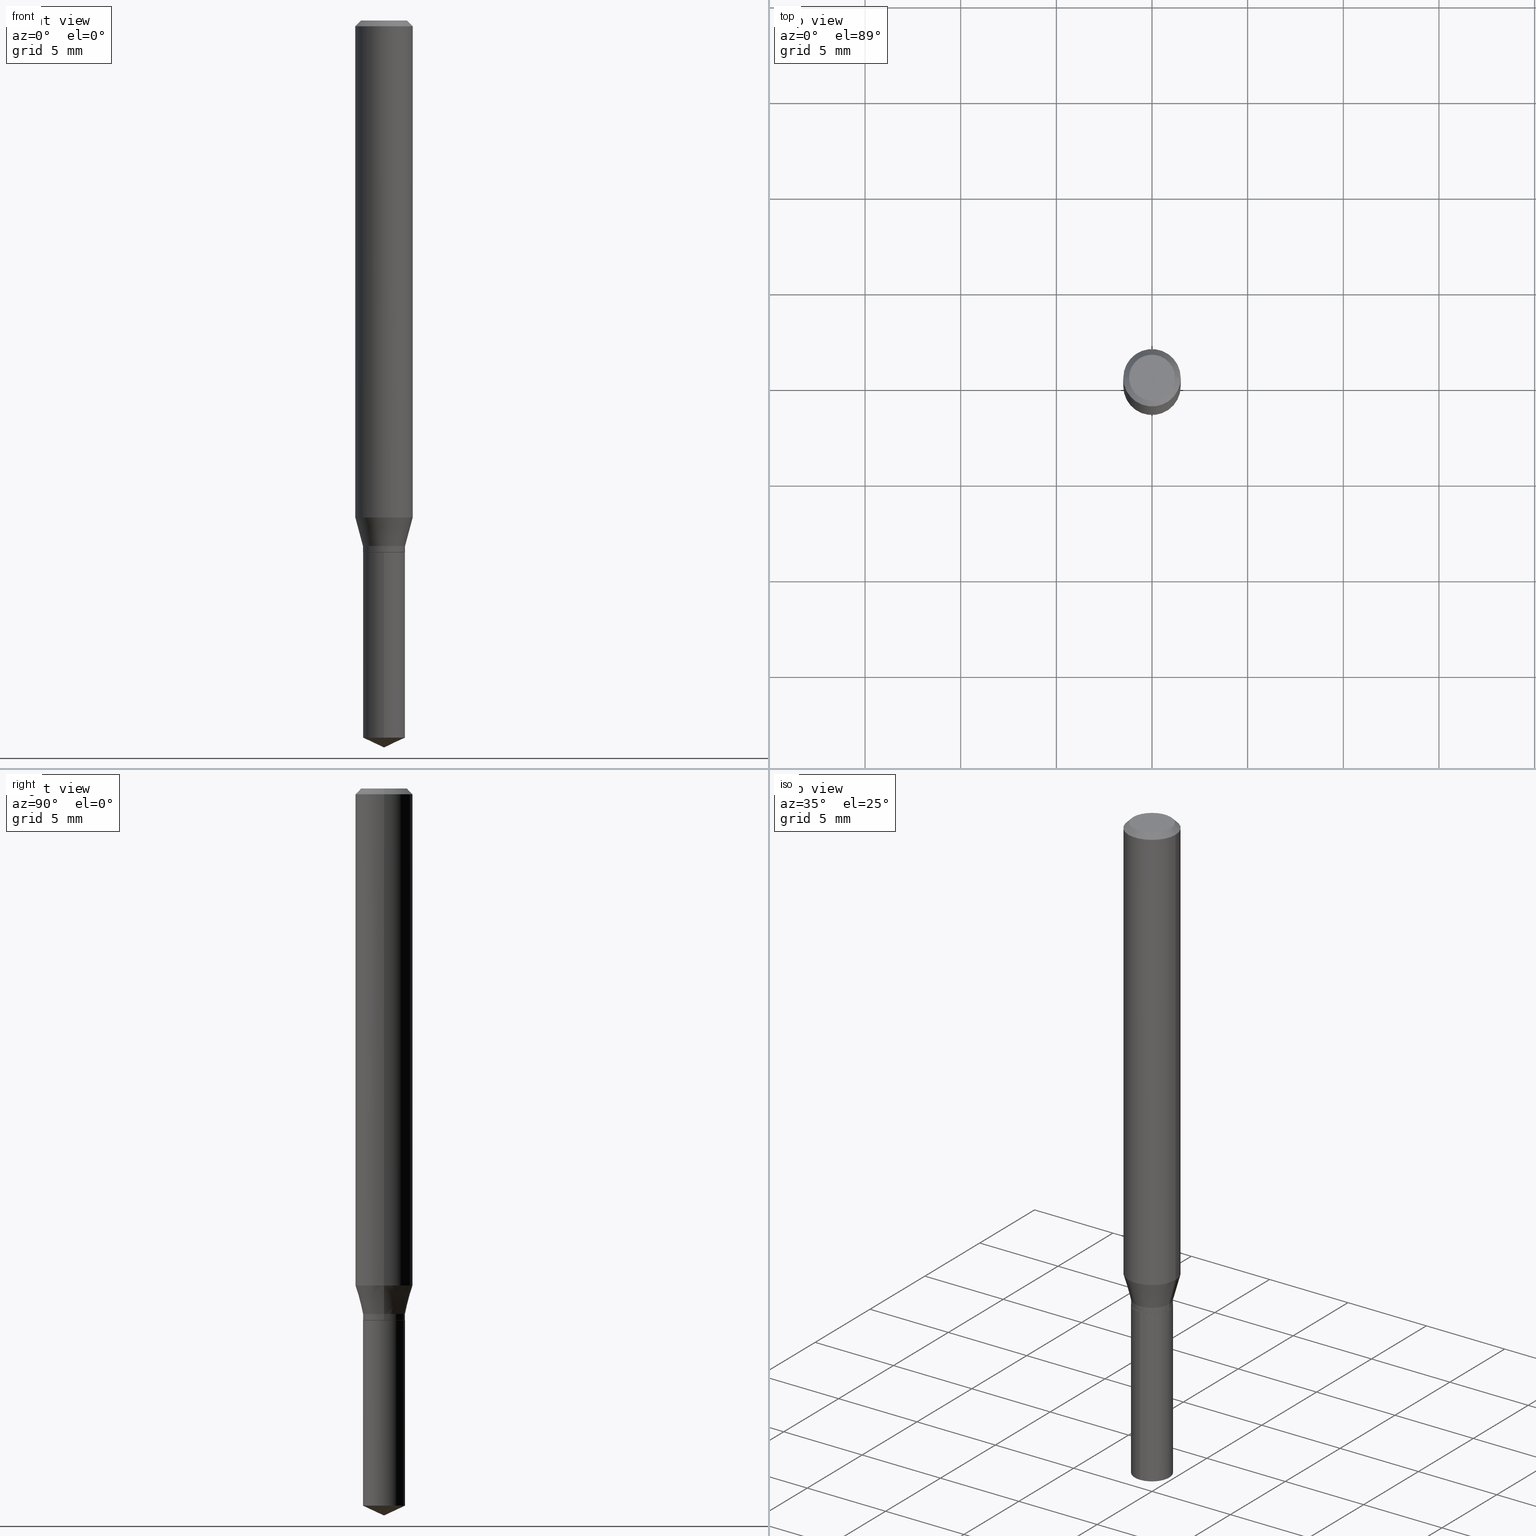
[diagram: canonical four-view strip — front | top / right | iso, engineering-drawing reading convention]
A machine part, canonical four-view strip (front | top / right | iso — engineering-drawing reading convention). The complete STEP part file that produces these views, byte-faithful:
ISO-10303-21;
HEADER;
FILE_DESCRIPTION (( 'STEP AP203' ),
    '1' );
FILE_NAME ('08377.STEP',
    '2024-04-24T14:43:29',
    ( '' ),
    ( '' ),
    'SwSTEP 2.0',
    'SolidWorks 2023',
    '' );
FILE_SCHEMA (( 'CONFIG_CONTROL_DESIGN' ));
ENDSEC;

DATA;
#1 = LINE ( 'NONE', #445, #167 ) ;
#2 = VERTEX_POINT ( 'NONE', #82 ) ;
#3 = CONICAL_SURFACE ( 'NONE', #279, 0.04329999999999997046, 0.2617993877991501850 ) ;
#4 = FACE_OUTER_BOUND ( 'NONE', #312, .T. ) ;
#5 = CARTESIAN_POINT ( 'NONE',  ( 0.04279999999999998389, -4.120297127968795228E-15, -1.094500000000000028 ) ) ;
#6 = VERTEX_POINT ( 'NONE', #260 ) ;
#7 = EDGE_CURVE ( 'NONE', #59, #2, #76, .T. ) ;
#8 = VECTOR ( 'NONE', #9, 39.37007874015748854 ) ;
#9 = DIRECTION ( 'NONE',  ( -6.328713451373358335E-15, -0.9063077870366470501, 0.4226182617407055475 ) ) ;
#10 = UNCERTAINTY_MEASURE_WITH_UNIT (LENGTH_MEASURE( 1.000000000000000082E-05 ), #340, 'distance_accuracy_value', 'NONE');
#11 = EDGE_LOOP ( 'NONE', ( #488, #72, #357, #25 ) ) ;
#12 = SHAPE_DEFINITION_REPRESENTATION ( #147, #402 ) ;
#13 = CC_DESIGN_APPROVAL ( #272, ( #154 ) ) ;
#14 = FACE_OUTER_BOUND ( 'NONE', #192, .T. ) ;
#15 = ORIENTED_EDGE ( 'NONE', *, *, #433, .F. ) ;
#16 = PERSON_AND_ORGANIZATION_ROLE ( 'classification_officer' ) ;
#17 = DIRECTION ( 'NONE',  ( 2.438088387897960049E-29, -3.491481338843145188E-15, -1.000000000000000000 ) ) ;
#18 = VECTOR ( 'NONE', #79, 39.37007874015748143 ) ;
#19 = CARTESIAN_POINT ( 'NONE',  ( -0.05904999999999999832, -1.386445958035808936E-15, -0.01181000000000007044 ) ) ;
#20 = SECURITY_CLASSIFICATION_LEVEL ( 'unclassified' ) ;
#21 = DIRECTION ( 'NONE',  ( -2.445468806185136877E-29, 3.491481338843145188E-15, 1.000000000000000000 ) ) ;
#22 = EDGE_CURVE ( 'NONE', #321, #462, #220, .T. ) ;
#23 = CARTESIAN_POINT ( 'NONE',  ( 2.888098660104663766E-31, -4.123439461173779647E-17, -0.01181000000000007044 ) ) ;
#24 = DIRECTION ( 'NONE',  ( -2.445358326776455510E-29, 3.491639551644474585E-15, 1.000000000000000000 ) ) ;
#25 = ORIENTED_EDGE ( 'NONE', *, *, #22, .F. ) ;
#26 = EDGE_CURVE ( 'NONE', #146, #451, #363, .T. ) ;
#27 = CARTESIAN_POINT ( 'NONE',  ( -3.023622839437885423E-16, -0.04330000000000382154, -1.094499999999999806 ) ) ;
#28 = CONICAL_SURFACE ( 'NONE', #251, 0.05904999999999999832, 0.7853981633974452814 ) ;
#29 = AXIS2_PLACEMENT_3D ( 'NONE', #153, #311, #422 ) ;
#30 = VECTOR ( 'NONE', #284, 39.37007874015748854 ) ;
#31 = PERSON_AND_ORGANIZATION ( #297, #347 ) ;
#32 = PERSON_AND_ORGANIZATION ( #297, #347 ) ;
#33 = DIRECTION ( 'NONE',  ( 1.000000000000000000, -6.982962677686267499E-15, 4.876176775795935232E-29 ) ) ;
#34 = ORIENTED_EDGE ( 'NONE', *, *, #196, .F. ) ;
#35 = EDGE_CURVE ( 'NONE', #324, #289, #1, .T. ) ;
#36 = DIRECTION ( 'NONE',  ( 1.000000000000000000, -6.982962677686266711E-15, 4.876176775795936353E-29 ) ) ;
#37 = DIRECTION ( 'NONE',  ( 0.7071067811865453523, -7.319954787623248157E-15, -0.7071067811865496822 ) ) ;
#38 = APPROVAL_DATE_TIME ( #381, #272 ) ;
#39 = CARTESIAN_POINT ( 'NONE',  ( 0.000000000000000000, 0.000000000000000000, 0.000000000000000000 ) ) ;
#40 = ORIENTED_EDGE ( 'NONE', *, *, #246, .T. ) ;
#41 = CALENDAR_DATE ( 2024, 24, 4 ) ;
#42 = DIRECTION ( 'NONE',  ( -2.445468806185136597E-29, 3.491481338843145583E-15, 1.000000000000000000 ) ) ;
#43 = EDGE_CURVE ( 'NONE', #44, #270, #250, .T. ) ;
#44 = VERTEX_POINT ( 'NONE', #298 ) ;
#45 = APPLICATION_CONTEXT ( 'configuration controlled 3d designs of mechanical parts and assemblies' ) ;
#46 = VERTEX_POINT ( 'NONE', #449 ) ;
#47 = FACE_OUTER_BOUND ( 'NONE', #458, .T. ) ;
#48 = DESIGN_CONTEXT ( 'detailed design', #45, 'design' ) ;
#49 = ORIENTED_EDGE ( 'NONE', *, *, #26, .T. ) ;
#50 = AXIS2_PLACEMENT_3D ( 'NONE', #482, #323, #290 ) ;
#51 = AXIS2_PLACEMENT_3D ( 'NONE', #23, #325, #476 ) ;
#52 = DIRECTION ( 'NONE',  ( -2.445358326776455790E-29, 3.491639551644474585E-15, 1.000000000000000000 ) ) ;
#53 = ORIENTED_EDGE ( 'NONE', *, *, #315, .F. ) ;
#54 = VECTOR ( 'NONE', #175, 39.37007874015748143 ) ;
#55 = DIRECTION ( 'NONE',  ( 0.7071067811864205632, -2.468850131080928224E-15, 0.7071067811866742492 ) ) ;
#56 = EDGE_LOOP ( 'NONE', ( #15, #128, #221, #34 ) ) ;
#57 = PERSON_AND_ORGANIZATION ( #297, #347 ) ;
#58 = FACE_OUTER_BOUND ( 'NONE', #280, .T. ) ;
#59 = VERTEX_POINT ( 'NONE', #407 ) ;
#60 = PERSON_AND_ORGANIZATION ( #297, #347 ) ;
#61 = VECTOR ( 'NONE', #205, 39.37007874015748854 ) ;
#62 = LINE ( 'NONE', #135, #30 ) ;
#63 = PERSON_AND_ORGANIZATION_ROLE ( 'creator' ) ;
#64 = AXIS2_PLACEMENT_3D ( 'NONE', #157, #193, #269 ) ;
#65 = CARTESIAN_POINT ( 'NONE',  ( -0.05905000000000006771, 4.195754854663396409E-16, -2.904631170795525045E-30 ) ) ;
#66 = EDGE_CURVE ( 'NONE', #270, #44, #238, .T. ) ;
#67 = LOCAL_TIME ( 10, 43, 29.00000000000000000, #199 ) ;
#68 = DIRECTION ( 'NONE',  ( -2.445468806185136597E-29, 3.491481338843145583E-15, 1.000000000000000000 ) ) ;
#69 = DIRECTION ( 'NONE',  ( -2.445468806185136877E-29, 3.491481338843145188E-15, 1.000000000000000000 ) ) ;
#70 = AXIS2_PLACEMENT_3D ( 'NONE', #287, #330, #248 ) ;
#71 = EDGE_CURVE ( 'NONE', #270, #2, #293, .T. ) ;
#72 = ORIENTED_EDGE ( 'NONE', *, *, #174, .T. ) ;
#73 = DIRECTION ( 'NONE',  ( -2.445358326776455510E-29, 3.491639551644474585E-15, 1.000000000000000000 ) ) ;
#74 = DIRECTION ( 'NONE',  ( 2.445358326776454949E-29, -3.491639551644474585E-15, -1.000000000000000000 ) ) ;
#75 = VECTOR ( 'NONE', #399, 39.37007874015748143 ) ;
#76 = LINE ( 'NONE', #373, #211 ) ;
#77 = AXIS2_PLACEMENT_3D ( 'NONE', #171, #371, #118 ) ;
#78 = COORDINATED_UNIVERSAL_TIME_OFFSET ( 5, 0, .BEHIND. ) ;
#79 = DIRECTION ( 'NONE',  ( -2.445468806185136877E-29, 3.491481338843145188E-15, 1.000000000000000000 ) ) ;
#80 = ORIENTED_EDGE ( 'NONE', *, *, #206, .T. ) ;
#81 =( NAMED_UNIT ( * ) SI_UNIT ( $, .STERADIAN. ) SOLID_ANGLE_UNIT ( ) );
#82 = CARTESIAN_POINT ( 'NONE',  ( 0.05904999999999999832, -4.535783407291118600E-16, -0.01181000000000007044 ) ) ;
#83 = COORDINATED_UNIVERSAL_TIME_OFFSET ( 5, 0, .BEHIND. ) ;
#84 = CARTESIAN_POINT ( 'NONE',  ( 2.676565608369632355E-29, -3.821426325363822773E-15, -1.094500000000000028 ) ) ;
#85 = ORIENTED_EDGE ( 'NONE', *, *, #246, .F. ) ;
#86 = ADVANCED_FACE ( 'NONE', ( #377 ), #410, .T. ) ;
#87 = ADVANCED_FACE ( 'NONE', ( #225 ), #382, .T. ) ;
#88 = CARTESIAN_POINT ( 'NONE',  ( 0.04279999999999998389, -4.120297127968795228E-15, -1.094500000000000028 ) ) ;
#89 = EDGE_LOOP ( 'NONE', ( #428, #123, #468, #464 ) ) ;
#90 = DIRECTION ( 'NONE',  ( -2.445358326776455510E-29, 3.491639551644474585E-15, 1.000000000000000000 ) ) ;
#91 = ORIENTED_EDGE ( 'NONE', *, *, #35, .F. ) ;
#92 = LINE ( 'NONE', #88, #331 ) ;
#93 = EDGE_CURVE ( 'NONE', #59, #324, #94, .T. ) ;
#94 = CIRCLE ( 'NONE', #150, 0.04724000000000000421 ) ;
#95 = DIRECTION ( 'NONE',  ( -2.445468806185136597E-29, 3.491481338843145583E-15, 1.000000000000000000 ) ) ;
#96 = LOCAL_TIME ( 10, 43, 29.00000000000000000, #83 ) ;
#97 = DIRECTION ( 'NONE',  ( -1.000000000000000000, 6.982962677686265922E-15, -4.876176775795935793E-29 ) ) ;
#98 = DATE_AND_TIME ( #131, #273 ) ;
#99 = EDGE_CURVE ( 'NONE', #289, #2, #106, .T. ) ;
#100 = CARTESIAN_POINT ( 'NONE',  ( -0.04724000000000000421, 3.504923541997677355E-16, -3.380025165670481712E-19 ) ) ;
#101 = CARTESIAN_POINT ( 'NONE',  ( -0.04329999999999997740, -3.490193821742507875E-15, -1.093999999999999861 ) ) ;
#102 = CARTESIAN_POINT ( 'NONE',  ( 0.04329999999999997046, -4.078399351902676776E-15, -1.081499999999999906 ) ) ;
#103 = ORIENTED_EDGE ( 'NONE', *, *, #176, .T. ) ;
#104 = LINE ( 'NONE', #139, #75 ) ;
#105 = VECTOR ( 'NONE', #21, 39.37007874015748143 ) ;
#106 = CIRCLE ( 'NONE', #431, 0.05904999999999999832 ) ;
#107 = CARTESIAN_POINT ( 'NONE',  ( 2.676565608369631794E-29, -3.821426325363822773E-15, -1.094499999999999806 ) ) ;
#108 = CARTESIAN_POINT ( 'NONE',  ( 2.501030346019352130E-29, -3.570808492392561101E-15, -1.022720199780789763 ) ) ;
#109 = CARTESIAN_POINT ( 'NONE',  ( 0.000000000000000000, 0.000000000000000000, 0.000000000000000000 ) ) ;
#110 = ADVANCED_FACE ( 'NONE', ( #429 ), #3, .T. ) ;
#111 = CARTESIAN_POINT ( 'NONE',  ( -9.261532836068574158E-28, 1.322424553111868898E-13, 37.87397874015748300 ) ) ;
#112 = CC_DESIGN_PERSON_AND_ORGANIZATION_ASSIGNMENT ( #60, #183, ( #421 ) ) ;
#113 = DIRECTION ( 'NONE',  ( 1.000000000000000000, -6.982962677686265133E-15, 0.000000000000000000 ) ) ;
#114 = ORIENTED_EDGE ( 'NONE', *, *, #130, .T. ) ;
#115 = CIRCLE ( 'NONE', #390, 0.04279999999999998389 ) ;
#116 = PERSON_AND_ORGANIZATION_ROLE ( 'design_owner' ) ;
#117 = ORIENTED_EDGE ( 'NONE', *, *, #174, .F. ) ;
#118 = DIRECTION ( 'NONE',  ( 1.000000000000000000, -6.982962677686265922E-15, 4.876176775795935793E-29 ) ) ;
#119 = DIRECTION ( 'NONE',  ( 1.000000000000000000, -6.982962677686265133E-15, 0.000000000000000000 ) ) ;
#120 = ORIENTED_EDGE ( 'NONE', *, *, #361, .F. ) ;
#121 = EDGE_CURVE ( 'NONE', #46, #44, #230, .T. ) ;
#122 = CARTESIAN_POINT ( 'NONE',  ( 2.676565608369632355E-29, -3.821426325363822773E-15, -1.094500000000000028 ) ) ;
#123 = ORIENTED_EDGE ( 'NONE', *, *, #196, .T. ) ;
#124 = DIRECTION ( 'NONE',  ( 2.445468806185136597E-29, -3.491481338843145583E-15, -1.000000000000000000 ) ) ;
#125 = ORIENTED_EDGE ( 'NONE', *, *, #130, .F. ) ;
#126 = CARTESIAN_POINT ( 'NONE',  ( -0.04329999999999997046, -3.468372063374738686E-15, -1.081499999999999906 ) ) ;
#127 = CC_DESIGN_APPROVAL ( #474, ( #204 ) ) ;
#128 = ORIENTED_EDGE ( 'NONE', *, *, #149, .T. ) ;
#129 = DIRECTION ( 'NONE',  ( 1.000000000000000000, -6.982962677686266711E-15, 4.876176775795936353E-29 ) ) ;
#130 = EDGE_CURVE ( 'NONE', #413, #462, #268, .T. ) ;
#131 = CALENDAR_DATE ( 2024, 24, 4 ) ;
#132 = LINE ( 'NONE', #356, #177 ) ;
#133 = CYLINDRICAL_SURFACE ( 'NONE', #437, 0.04329999999999997046 ) ;
#134 = COORDINATED_UNIVERSAL_TIME_OFFSET ( 5, 0, .BEHIND. ) ;
#135 = CARTESIAN_POINT ( 'NONE',  ( -0.04279999999999998389, -3.517314034458499860E-15, -1.094500000000000028 ) ) ;
#136 = AXIS2_PLACEMENT_3D ( 'NONE', #111, #73, #213 ) ;
#137 = FACE_OUTER_BOUND ( 'NONE', #472, .T. ) ;
#138 = LINE ( 'NONE', #102, #316 ) ;
#139 = CARTESIAN_POINT ( 'NONE',  ( 0.04329999999999997046, -3.023622839438151663E-16, 2.111384543919638525E-30 ) ) ;
#140 = AXIS2_PLACEMENT_3D ( 'NONE', #39, #145, #33 ) ;
#141 = CARTESIAN_POINT ( 'NONE',  ( -3.023622839437885423E-16, -0.04330000000000382154, -1.094499999999999806 ) ) ;
#142 = APPROVAL_ROLE ( '' ) ;
#143 = ORIENTED_EDGE ( 'NONE', *, *, #35, .T. ) ;
#144 = PLANE ( 'NONE',  #77 ) ;
#145 = DIRECTION ( 'NONE',  ( -2.445468806185136597E-29, 3.491481338843145583E-15, 1.000000000000000000 ) ) ;
#146 = VERTEX_POINT ( 'NONE', #5 ) ;
#147 = PRODUCT_DEFINITION_SHAPE ( 'NONE', 'NONE',  #421 ) ;
#148 = FACE_OUTER_BOUND ( 'NONE', #339, .T. ) ;
#149 = EDGE_CURVE ( 'NONE', #423, #467, #295, .T. ) ;
#150 = AXIS2_PLACEMENT_3D ( 'NONE', #305, #454, #415 ) ;
#151 = DIRECTION ( 'NONE',  ( -0.7071067811865453523, 2.468850131082234184E-15, -0.7071067811865496822 ) ) ;
#152 = ORIENTED_EDGE ( 'NONE', *, *, #328, .F. ) ;
#153 = CARTESIAN_POINT ( 'NONE',  ( 2.676565608369632355E-29, -3.821426325363822773E-15, -1.094500000000000028 ) ) ;
#154 = SECURITY_CLASSIFICATION ( '', '', #20 ) ;
#155 = CARTESIAN_POINT ( 'NONE',  ( 2.675342873966538993E-29, -3.819680584694400481E-15, -1.093999999999999861 ) ) ;
#156 = CARTESIAN_POINT ( 'NONE',  ( 2.888098660104663766E-31, -4.123439461173779647E-17, -0.01181000000000007044 ) ) ;
#157 = CARTESIAN_POINT ( 'NONE',  ( 2.675342873966538993E-29, -3.819680584694400481E-15, -1.093999999999999861 ) ) ;
#158 = ORIENTED_EDGE ( 'NONE', *, *, #426, .F. ) ;
#159 = LINE ( 'NONE', #236, #8 ) ;
#160 = CARTESIAN_POINT ( 'NONE',  ( 2.676565608369631794E-29, -3.821426325363822773E-15, -1.094499999999999806 ) ) ;
#161 = EDGE_CURVE ( 'NONE', #455, #46, #336, .T. ) ;
#162 = AXIS2_PLACEMENT_3D ( 'NONE', #184, #233, #274 ) ;
#163 = CARTESIAN_POINT ( 'NONE',  ( 2.644774513889225122E-29, -3.776037067958862103E-15, -1.081499999999999906 ) ) ;
#164 = PERSON_AND_ORGANIZATION ( #297, #347 ) ;
#165 = PLANE ( 'NONE',  #452 ) ;
#166 = CARTESIAN_POINT ( 'NONE',  ( -9.261532836068574158E-28, 1.322424553111868898E-13, 37.87397874015748300 ) ) ;
#167 = VECTOR ( 'NONE', #151, 39.37007874015748143 ) ;
#168 = ADVANCED_FACE ( 'NONE', ( #14 ), #439, .T. ) ;
#169 = CARTESIAN_POINT ( 'NONE',  ( -3.023622839437791746E-16, -0.04330000000000515381, -1.475908878401888114 ) ) ;
#170 = ORIENTED_EDGE ( 'NONE', *, *, #161, .T. ) ;
#171 = CARTESIAN_POINT ( 'NONE',  ( 2.374170476497901664E-30, -7.314425892029170306E-15, -1.094500000000000028 ) ) ;
#172 = AXIS2_PLACEMENT_3D ( 'NONE', #107, #292, #484 ) ;
#173 = LENGTH_MEASURE_WITH_UNIT ( LENGTH_MEASURE( 0.02539999999999999897 ), #406 );
#174 = EDGE_CURVE ( 'NONE', #210, #413, #132, .T. ) ;
#175 = DIRECTION ( 'NONE',  ( -2.445358326776455790E-29, 3.491639551644474585E-15, 1.000000000000000000 ) ) ;
#176 = EDGE_CURVE ( 'NONE', #6, #321, #159, .T. ) ;
#177 = VECTOR ( 'NONE', #52, 39.37007874015748143 ) ;
#178 = APPROVAL ( #414, 'UNSPECIFIED' ) ;
#179 = DIRECTION ( 'NONE',  ( -6.982962677686265922E-15, -1.000000000000000000, 3.154558884138872662E-15 ) ) ;
#180 = ORIENTED_EDGE ( 'NONE', *, *, #303, .F. ) ;
#181 = CARTESIAN_POINT ( 'NONE',  ( 0.000000000000000000, 0.000000000000000000, 0.000000000000000000 ) ) ;
#182 = CONICAL_SURFACE ( 'NONE', #420, 84.42940631927322670, 1.134464013796310899 ) ;
#183 = PERSON_AND_ORGANIZATION_ROLE ( 'creator' ) ;
#184 = CARTESIAN_POINT ( 'NONE',  ( 2.644774513889225122E-29, -3.776037067958862103E-15, -1.081499999999999906 ) ) ;
#185 = ORIENTED_EDGE ( 'NONE', *, *, #433, .T. ) ;
#186 = DATE_AND_TIME ( #475, #67 ) ;
#187 = DIRECTION ( 'NONE',  ( 1.000000000000000000, -6.982962677686266711E-15, 0.000000000000000000 ) ) ;
#188 = ORIENTED_EDGE ( 'NONE', *, *, #303, .T. ) ;
#189 = CC_DESIGN_SECURITY_CLASSIFICATION ( #154, ( #204 ) ) ;
#190 = DIRECTION ( 'NONE',  ( -1.000000000000000000, 6.982962677686266711E-15, 0.000000000000000000 ) ) ;
#191 = ADVANCED_FACE ( 'NONE', ( #47 ), #319, .T. ) ;
#192 = EDGE_LOOP ( 'NONE', ( #180, #378, #40, #299 ) ) ;
#193 = DIRECTION ( 'NONE',  ( -2.445468806185136597E-29, 3.491481338843145583E-15, 1.000000000000000000 ) ) ;
#194 = ORIENTED_EDGE ( 'NONE', *, *, #281, .F. ) ;
#195 = PERSON_AND_ORGANIZATION ( #297, #347 ) ;
#196 = EDGE_CURVE ( 'NONE', #46, #455, #405, .T. ) ;
#197 = FACE_OUTER_BOUND ( 'NONE', #419, .T. ) ;
#198 = EDGE_LOOP ( 'NONE', ( #430, #350 ) ) ;
#199 = COORDINATED_UNIVERSAL_TIME_OFFSET ( 5, 0, .BEHIND. ) ;
#200 = AXIS2_PLACEMENT_3D ( 'NONE', #163, #243, #360 ) ;
#201 = DIRECTION ( 'NONE',  ( 1.000000000000000000, -6.982962677686267499E-15, 4.876176775795935232E-29 ) ) ;
#202 = CC_DESIGN_PERSON_AND_ORGANIZATION_ASSIGNMENT ( #32, #116, ( #417 ) ) ;
#203 = CARTESIAN_POINT ( 'NONE',  ( 0.05905000000000013016, -3.983152438509936021E-15, -1.022720199780789763 ) ) ;
#204 = PRODUCT_DEFINITION_FORMATION_WITH_SPECIFIED_SOURCE ( 'ANY', '', #417, .NOT_KNOWN. ) ;
#205 = DIRECTION ( 'NONE',  ( 6.439704144417013787E-15, 0.9063077870366499367, 0.4226182617406992192 ) ) ;
#206 = EDGE_CURVE ( 'NONE', #467, #423, #308, .T. ) ;
#207 = VECTOR ( 'NONE', #69, 39.37007874015748143 ) ;
#208 = AXIS2_PLACEMENT_3D ( 'NONE', #160, #24, #365 ) ;
#209 = LINE ( 'NONE', #65, #105 ) ;
#210 = VERTEX_POINT ( 'NONE', #344 ) ;
#211 = VECTOR ( 'NONE', #37, 39.37007874015748143 ) ;
#212 = AXIS2_PLACEMENT_3D ( 'NONE', #317, #95, #359 ) ;
#213 = DIRECTION ( 'NONE',  ( -6.982962677686267499E-15, -1.000000000000000000, 3.520397390770500413E-15 ) ) ;
#214 = CARTESIAN_POINT ( 'NONE',  ( 2.676565608369631794E-29, -3.821426325363822773E-15, -1.094499999999999806 ) ) ;
#215 = MANIFOLD_SOLID_BREP ( 'Body-Move/Copy2[2]', #229 ) ;
#216 = DIRECTION ( 'NONE',  ( 0.000000000000000000, 0.000000000000000000, 1.000000000000000000 ) ) ;
#217 = CARTESIAN_POINT ( 'NONE',  ( 2.676565608369631794E-29, -3.821426325363822773E-15, -1.094499999999999806 ) ) ;
#218 = AXIS2_PLACEMENT_3D ( 'NONE', #122, #432, #388 ) ;
#219 = CYLINDRICAL_SURFACE ( 'NONE', #172, 0.04329999999999999127 ) ;
#220 = LINE ( 'NONE', #141, #54 ) ;
#221 = ORIENTED_EDGE ( 'NONE', *, *, #267, .T. ) ;
#222 = APPROVAL_DATE_TIME ( #256, #178 ) ;
#223 = DATE_TIME_ROLE ( 'creation_date' ) ;
#224 = CIRCLE ( 'NONE', #262, 0.04329999999999999127 ) ;
#225 = FACE_OUTER_BOUND ( 'NONE', #56, .T. ) ;
#226 = ORIENTED_EDGE ( 'NONE', *, *, #161, .F. ) ;
#227 = CIRCLE ( 'NONE', #50, 0.04329999999999999127 ) ;
#228 = PERSON_AND_ORGANIZATION_ROLE ( 'design_supplier' ) ;
#229 = CLOSED_SHELL ( 'NONE', ( #244, #234, #442, #249, #396, #87, #110, #191, #385, #364, #446, #168 ) ) ;
#230 = LINE ( 'NONE', #126, #376 ) ;
#231 = ORIENTED_EDGE ( 'NONE', *, *, #285, .F. ) ;
#232 = ORIENTED_EDGE ( 'NONE', *, *, #71, .F. ) ;
#233 = DIRECTION ( 'NONE',  ( -2.445468806185136597E-29, 3.491481338843145583E-15, 1.000000000000000000 ) ) ;
#234 = ADVANCED_FACE ( 'NONE', ( #463 ), #28, .T. ) ;
#235 = ORIENTED_EDGE ( 'NONE', *, *, #66, .F. ) ;
#236 = CARTESIAN_POINT ( 'NONE',  ( 3.658500592690254185E-29, -5.223841933215297403E-15, -1.496099999999999985 ) ) ;
#237 = AXIS2_PLACEMENT_3D ( 'NONE', #181, #335, #36 ) ;
#238 = CIRCLE ( 'NONE', #479, 0.05905000000000013016 ) ;
#239 = ORIENTED_EDGE ( 'NONE', *, *, #99, .T. ) ;
#240 = DIRECTION ( 'NONE',  ( 1.000000000000000000, -6.982962677686272233E-15, 0.000000000000000000 ) ) ;
#241 = DIRECTION ( 'NONE',  ( -2.445358326776455510E-29, 3.491639551644474585E-15, 1.000000000000000000 ) ) ;
#242 = APPROVAL_STATUS ( 'not_yet_approved' ) ;
#243 = DIRECTION ( 'NONE',  ( -2.445468806185136597E-29, 3.491481338843145583E-15, 1.000000000000000000 ) ) ;
#244 = ADVANCED_FACE ( 'NONE', ( #4 ), #459, .T. ) ;
#245 = LINE ( 'NONE', #400, #61 ) ;
#246 = EDGE_CURVE ( 'NONE', #146, #467, #92, .T. ) ;
#247 = DIRECTION ( 'NONE',  ( -6.982962677686265922E-15, -1.000000000000000000, 6.309117768277745325E-15 ) ) ;
#248 = DIRECTION ( 'NONE',  ( -1.000000000000000000, 6.982962677686266711E-15, 0.000000000000000000 ) ) ;
#249 = ADVANCED_FACE ( 'NONE', ( #386 ), #300, .T. ) ;
#250 = CIRCLE ( 'NONE', #342, 0.05905000000000013016 ) ;
#251 = AXIS2_PLACEMENT_3D ( 'NONE', #156, #124, #190 ) ;
#252 = EDGE_LOOP ( 'NONE', ( #117, #258, #318, #125 ) ) ;
#253 = DIRECTION ( 'NONE',  ( -2.445468806185136597E-29, 3.491481338843145583E-15, 1.000000000000000000 ) ) ;
#254 = ORIENTED_EDGE ( 'NONE', *, *, #281, .T. ) ;
#255 = AXIS2_PLACEMENT_3D ( 'NONE', #84, #257, #341 ) ;
#256 = DATE_AND_TIME ( #487, #408 ) ;
#257 = DIRECTION ( 'NONE',  ( -2.445468806185136597E-29, 3.491481338843145583E-15, 1.000000000000000000 ) ) ;
#258 = ORIENTED_EDGE ( 'NONE', *, *, #313, .T. ) ;
#259 = LOCAL_TIME ( 10, 43, 29.00000000000000000, #134 ) ;
#260 = CARTESIAN_POINT ( 'NONE',  ( 3.658500592690254185E-29, -5.223841933215297403E-15, -1.496099999999999985 ) ) ;
#261 = ORIENTED_EDGE ( 'NONE', *, *, #361, .T. ) ;
#262 = AXIS2_PLACEMENT_3D ( 'NONE', #480, #241, #247 ) ;
#263 = DIRECTION ( 'NONE',  ( -2.445468806185136597E-29, 3.491481338843145583E-15, 1.000000000000000000 ) ) ;
#264 = ORIENTED_EDGE ( 'NONE', *, *, #7, .T. ) ;
#265 = AXIS2_PLACEMENT_3D ( 'NONE', #369, #362, #288 ) ;
#266 = ORIENTED_EDGE ( 'NONE', *, *, #26, .F. ) ;
#267 = EDGE_CURVE ( 'NONE', #467, #455, #104, .T. ) ;
#268 = CIRCLE ( 'NONE', #384, 0.04329999999999999127 ) ;
#269 = DIRECTION ( 'NONE',  ( 1.000000000000000000, -6.982962677686272233E-15, 0.000000000000000000 ) ) ;
#270 = VERTEX_POINT ( 'NONE', #203 ) ;
#271 = AXIS2_PLACEMENT_3D ( 'NONE', #155, #470, #240 ) ;
#272 = APPROVAL ( #418, 'UNSPECIFIED' ) ;
#273 = LOCAL_TIME ( 10, 43, 29.00000000000000000, #460 ) ;
#274 = DIRECTION ( 'NONE',  ( 1.000000000000000000, -6.982962677686261189E-15, 0.000000000000000000 ) ) ;
#275 = ORIENTED_EDGE ( 'NONE', *, *, #121, .T. ) ;
#276 = AXIS2_PLACEMENT_3D ( 'NONE', #214, #74, #379 ) ;
#277 = DATE_TIME_ROLE ( 'classification_date' ) ;
#278 = CARTESIAN_POINT ( 'NONE',  ( 2.676565608369631794E-29, -3.821426325363822773E-15, -1.094499999999999806 ) ) ;
#279 = AXIS2_PLACEMENT_3D ( 'NONE', #427, #466, #461 ) ;
#280 = EDGE_LOOP ( 'NONE', ( #387, #261, #194, #232 ) ) ;
#281 = EDGE_CURVE ( 'NONE', #2, #289, #471, .T. ) ;
#282 = APPROVAL_DATE_TIME ( #186, #474 ) ;
#283 = CARTESIAN_POINT ( 'NONE',  ( 3.076650045841594582E-16, 0.04329999999999616794, -1.094500000000000028 ) ) ;
#284 = DIRECTION ( 'NONE',  ( -0.7071067811864205632, 7.493145998869895043E-15, 0.7071067811866742492 ) ) ;
#285 = EDGE_CURVE ( 'NONE', #324, #59, #327, .T. ) ;
#286 = EDGE_CURVE ( 'NONE', #462, #413, #304, .T. ) ;
#287 = CARTESIAN_POINT ( 'NONE',  ( 2.888098660104663766E-31, -4.123439461173779647E-17, -0.01181000000000007044 ) ) ;
#288 = DIRECTION ( 'NONE',  ( 1.000000000000000000, -6.982962677686266711E-15, 4.876185090822587894E-29 ) ) ;
#289 = VERTEX_POINT ( 'NONE', #19 ) ;
#290 = DIRECTION ( 'NONE',  ( -6.982962677686265922E-15, -1.000000000000000000, 6.309117768277745325E-15 ) ) ;
#291 = ADVANCED_FACE ( 'NONE', ( #197 ), #182, .T. ) ;
#292 = DIRECTION ( 'NONE',  ( -2.445358326776455510E-29, 3.491639551644474585E-15, 1.000000000000000000 ) ) ;
#293 = LINE ( 'NONE', #334, #18 ) ;
#294 = CC_DESIGN_PERSON_AND_ORGANIZATION_ASSIGNMENT ( #57, #228, ( #204 ) ) ;
#295 = CIRCLE ( 'NONE', #64, 0.04329999999999997740 ) ;
#296 = APPLICATION_PROTOCOL_DEFINITION ( 'international standard', 'config_control_design', 1994, #314 ) ;
#297 = PERSON ( 'UNSPECIFIED', 'UNSPECIFIED', 'UNSPECIFIED', ('UNSPECIFIED'), ('UNSPECIFIED'), ('UNSPECIFIED') ) ;
#298 = CARTESIAN_POINT ( 'NONE',  ( -0.05905000000000013016, -3.151233006926221213E-15, -1.022720199780789763 ) ) ;
#299 = ORIENTED_EDGE ( 'NONE', *, *, #149, .F. ) ;
#300 = CONICAL_SURFACE ( 'NONE', #200, 0.04329999999999997046, 0.2617993877991501850 ) ;
#301 = CONICAL_SURFACE ( 'NONE', #70, 0.05904999999999999832, 0.7853981633974452814 ) ;
#302 = FACE_OUTER_BOUND ( 'NONE', #349, .T. ) ;
#303 = EDGE_CURVE ( 'NONE', #451, #423, #62, .T. ) ;
#304 = CIRCLE ( 'NONE', #208, 0.04329999999999999127 ) ;
#305 = CARTESIAN_POINT ( 'NONE',  ( 8.265746106709734507E-48, -1.180129479067563789E-33, -3.380025165646692144E-19 ) ) ;
#306 = ORIENTED_EDGE ( 'NONE', *, *, #7, .F. ) ;
#307 = AXIS2_PLACEMENT_3D ( 'NONE', #217, #337, #179 ) ;
#308 = CIRCLE ( 'NONE', #271, 0.04329999999999997740 ) ;
#309 = ORIENTED_EDGE ( 'NONE', *, *, #43, .T. ) ;
#310 = CC_DESIGN_APPROVAL ( #178, ( #421 ) ) ;
#311 = DIRECTION ( 'NONE',  ( -2.445468806185136597E-29, 3.491481338843145583E-15, 1.000000000000000000 ) ) ;
#312 = EDGE_LOOP ( 'NONE', ( #49, #188, #353, #85 ) ) ;
#313 = EDGE_CURVE ( 'NONE', #210, #321, #227, .T. ) ;
#314 = APPLICATION_CONTEXT ( 'configuration controlled 3d designs of mechanical parts and assemblies' ) ;
#315 = EDGE_CURVE ( 'NONE', #451, #146, #115, .T. ) ;
#316 = VECTOR ( 'NONE', #443, 39.37007874015748143 ) ;
#317 = CARTESIAN_POINT ( 'NONE',  ( 2.644774513889225122E-29, -3.776037067958862103E-15, -1.081499999999999906 ) ) ;
#318 = ORIENTED_EDGE ( 'NONE', *, *, #22, .T. ) ;
#319 = CYLINDRICAL_SURFACE ( 'NONE', #355, 0.05905000000000006771 ) ;
#320 = CARTESIAN_POINT ( 'NONE',  ( 0.000000000000000000, 0.000000000000000000, 0.000000000000000000 ) ) ;
#321 = VERTEX_POINT ( 'NONE', #169 ) ;
#322 = APPROVAL_ROLE ( '' ) ;
#323 = DIRECTION ( 'NONE',  ( -2.445358326776455510E-29, 3.491639551644474585E-15, 1.000000000000000000 ) ) ;
#324 = VERTEX_POINT ( 'NONE', #100 ) ;
#325 = DIRECTION ( 'NONE',  ( -2.445468806185136597E-29, 3.491481338843145583E-15, 1.000000000000000000 ) ) ;
#326 = FACE_OUTER_BOUND ( 'NONE', #198, .T. ) ;
#327 = CIRCLE ( 'NONE', #265, 0.04724000000000000421 ) ;
#328 = EDGE_CURVE ( 'NONE', #455, #270, #138, .T. ) ;
#329 = CARTESIAN_POINT ( 'NONE',  ( 2.676565608369632355E-29, -3.821426325363822773E-15, -1.094500000000000028 ) ) ;
#330 = DIRECTION ( 'NONE',  ( 2.445468806185136597E-29, -3.491481338843145583E-15, -1.000000000000000000 ) ) ;
#331 = VECTOR ( 'NONE', #55, 39.37007874015748854 ) ;
#332 = ORIENTED_EDGE ( 'NONE', *, *, #286, .T. ) ;
#333 = CARTESIAN_POINT ( 'NONE',  ( 0.04329999999999997740, -4.122042868638215943E-15, -1.093999999999999861 ) ) ;
#334 = CARTESIAN_POINT ( 'NONE',  ( 0.05905000000000006771, -4.123439461173745257E-16, 2.879382386107503723E-30 ) ) ;
#335 = DIRECTION ( 'NONE',  ( -2.445468806185136597E-29, 3.491481338843145583E-15, 1.000000000000000000 ) ) ;
#336 = CIRCLE ( 'NONE', #162, 0.04329999999999997046 ) ;
#337 = DIRECTION ( 'NONE',  ( -2.445358326776455510E-29, 3.491639551644474585E-15, 1.000000000000000000 ) ) ;
#338 = CARTESIAN_POINT ( 'NONE',  ( 2.501030346019352130E-29, -3.570808492392561101E-15, -1.022720199780789763 ) ) ;
#339 = EDGE_LOOP ( 'NONE', ( #370, #395, #403 ) ) ;
#340 =( CONVERSION_BASED_UNIT ( 'INCH', #173 ) LENGTH_UNIT ( ) NAMED_UNIT ( #486 ) );
#341 = DIRECTION ( 'NONE',  ( 1.000000000000000000, -6.982962677686269077E-15, 0.000000000000000000 ) ) ;
#342 = AXIS2_PLACEMENT_3D ( 'NONE', #108, #457, #113 ) ;
#343 = PERSON_AND_ORGANIZATION ( #297, #347 ) ;
#344 = CARTESIAN_POINT ( 'NONE',  ( 3.076650045841594582E-16, 0.04329999999999483568, -1.475908878401888558 ) ) ;
#345 = ORIENTED_EDGE ( 'NONE', *, *, #71, .T. ) ;
#346 = CALENDAR_DATE ( 2024, 24, 4 ) ;
#347 = ORGANIZATION ( 'UNSPECIFIED', 'UNSPECIFIED', '' ) ;
#348 = DIRECTION ( 'NONE',  ( -0.2588190451025214611, 5.211531920934550253E-15, 0.9659258262890679791 ) ) ;
#349 = EDGE_LOOP ( 'NONE', ( #332, #114 ) ) ;
#350 = ORIENTED_EDGE ( 'NONE', *, *, #93, .T. ) ;
#351 = CONICAL_SURFACE ( 'NONE', #136, 84.42940631927322670, 1.134464013796310899 ) ;
#352 = CARTESIAN_POINT ( 'NONE',  ( 2.888098660104663766E-31, -4.123439461173779647E-17, -0.01181000000000007044 ) ) ;
#353 = ORIENTED_EDGE ( 'NONE', *, *, #206, .F. ) ;
#354 =( GEOMETRIC_REPRESENTATION_CONTEXT ( 3 ) GLOBAL_UNCERTAINTY_ASSIGNED_CONTEXT ( ( #10 ) ) GLOBAL_UNIT_ASSIGNED_CONTEXT ( ( #340, #411, #81 ) ) REPRESENTATION_CONTEXT ( 'NONE', 'WORKASPACE' ) );
#355 = AXIS2_PLACEMENT_3D ( 'NONE', #320, #263, #129 ) ;
#356 = CARTESIAN_POINT ( 'NONE',  ( 3.076650045841500411E-16, 0.04329999999999616794, -1.094500000000000028 ) ) ;
#357 = ORIENTED_EDGE ( 'NONE', *, *, #286, .F. ) ;
#358 = CC_DESIGN_DATE_AND_TIME_ASSIGNMENT ( #477, #277, ( #154 ) ) ;
#359 = DIRECTION ( 'NONE',  ( 1.000000000000000000, -6.982962677686261189E-15, 0.000000000000000000 ) ) ;
#360 = DIRECTION ( 'NONE',  ( 1.000000000000000000, -6.982962677686261189E-15, 0.000000000000000000 ) ) ;
#361 = EDGE_CURVE ( 'NONE', #44, #289, #209, .T. ) ;
#362 = DIRECTION ( 'NONE',  ( -2.445468806185136597E-29, 3.491481338843145583E-15, 1.000000000000000000 ) ) ;
#363 = CIRCLE ( 'NONE', #255, 0.04279999999999998389 ) ;
#364 = ADVANCED_FACE ( 'NONE', ( #326 ), #165, .F. ) ;
#365 = DIRECTION ( 'NONE',  ( -6.982962677686265922E-15, -1.000000000000000000, 3.154558884138872662E-15 ) ) ;
#366 = AXIS2_PLACEMENT_3D ( 'NONE', #109, #216, #374 ) ;
#367 = CC_DESIGN_PERSON_AND_ORGANIZATION_ASSIGNMENT ( #164, #16, ( #154 ) ) ;
#368 = LINE ( 'NONE', #401, #207 ) ;
#369 = CARTESIAN_POINT ( 'NONE',  ( 8.265746106709734507E-48, -1.180129479067563789E-33, -3.380025165646692144E-19 ) ) ;
#370 = ORIENTED_EDGE ( 'NONE', *, *, #176, .F. ) ;
#371 = DIRECTION ( 'NONE',  ( -2.438088387897960049E-29, 3.491481338843145188E-15, 1.000000000000000000 ) ) ;
#372 = FACE_OUTER_BOUND ( 'NONE', #11, .T. ) ;
#373 = CARTESIAN_POINT ( 'NONE',  ( 0.05904999999999999832, -4.463468013801466955E-16, -0.01181000000000007044 ) ) ;
#374 = DIRECTION ( 'NONE',  ( 1.000000000000000000, 0.000000000000000000, 0.000000000000000000 ) ) ;
#375 = EDGE_CURVE ( 'NONE', #321, #210, #224, .T. ) ;
#376 = VECTOR ( 'NONE', #348, 39.37007874015748143 ) ;
#377 = FACE_OUTER_BOUND ( 'NONE', #252, .T. ) ;
#378 = ORIENTED_EDGE ( 'NONE', *, *, #315, .T. ) ;
#379 = DIRECTION ( 'NONE',  ( 6.982962677686265922E-15, 1.000000000000000000, -3.491639551644474585E-15 ) ) ;
#380 = ORIENTED_EDGE ( 'NONE', *, *, #99, .F. ) ;
#381 = DATE_AND_TIME ( #346, #96 ) ;
#382 = CYLINDRICAL_SURFACE ( 'NONE', #140, 0.04329999999999997046 ) ;
#383 = EDGE_LOOP ( 'NONE', ( #170, #275, #235, #152 ) ) ;
#384 = AXIS2_PLACEMENT_3D ( 'NONE', #278, #90, #391 ) ;
#385 = ADVANCED_FACE ( 'NONE', ( #137 ), #301, .T. ) ;
#386 = FACE_OUTER_BOUND ( 'NONE', #383, .T. ) ;
#387 = ORIENTED_EDGE ( 'NONE', *, *, #66, .T. ) ;
#388 = DIRECTION ( 'NONE',  ( 1.000000000000000000, -6.982962677686269077E-15, 0.000000000000000000 ) ) ;
#389 = ORIENTED_EDGE ( 'NONE', *, *, #313, .F. ) ;
#390 = AXIS2_PLACEMENT_3D ( 'NONE', #329, #68, #436 ) ;
#391 = DIRECTION ( 'NONE',  ( -6.982962677686265922E-15, -1.000000000000000000, 3.154558884138872662E-15 ) ) ;
#392 = EDGE_LOOP ( 'NONE', ( #266, #53 ) ) ;
#393 = APPROVAL_PERSON_ORGANIZATION ( #31, #178, #142 ) ;
#394 = MANIFOLD_SOLID_BREP ( 'Body-Move/Copy2[1]', #481 ) ;
#395 = ORIENTED_EDGE ( 'NONE', *, *, #426, .T. ) ;
#396 = ADVANCED_FACE ( 'NONE', ( #473 ), #133, .T. ) ;
#397 = CARTESIAN_POINT ( 'NONE',  ( 0.000000000000000000, 0.000000000000000000, 0.000000000000000000 ) ) ;
#398 = APPROVAL_ROLE ( '' ) ;
#399 = DIRECTION ( 'NONE',  ( -2.445468806185136877E-29, 3.491481338843145188E-15, 1.000000000000000000 ) ) ;
#400 = CARTESIAN_POINT ( 'NONE',  ( 3.658744552762151624E-29, -5.223495605393188568E-15, -1.496099999999999985 ) ) ;
#401 = CARTESIAN_POINT ( 'NONE',  ( -0.04329999999999997046, 3.076650045841231706E-16, -2.129898894080373002E-30 ) ) ;
#402 = ADVANCED_BREP_SHAPE_REPRESENTATION ( '08377', ( #394, #215, #366 ), #354 ) ;
#403 = ORIENTED_EDGE ( 'NONE', *, *, #375, .F. ) ;
#404 = CARTESIAN_POINT ( 'NONE',  ( -0.04279999999999998389, -3.514664807284389054E-15, -1.094500000000000028 ) ) ;
#405 = CIRCLE ( 'NONE', #212, 0.04329999999999997046 ) ;
#406 =( LENGTH_UNIT ( ) NAMED_UNIT ( * ) SI_UNIT ( $, .METRE. ) );
#407 = CARTESIAN_POINT ( 'NONE',  ( 0.04724000000000000421, -3.852183633974369345E-16, -3.380025165621689721E-19 ) ) ;
#408 = LOCAL_TIME ( 10, 43, 29.00000000000000000, #78 ) ;
#409 = CYLINDRICAL_SURFACE ( 'NONE', #237, 0.05905000000000006771 ) ;
#410 = CYLINDRICAL_SURFACE ( 'NONE', #307, 0.04329999999999999127 ) ;
#411 =( NAMED_UNIT ( * ) PLANE_ANGLE_UNIT ( ) SI_UNIT ( $, .RADIAN. ) );
#412 = CC_DESIGN_DATE_AND_TIME_ASSIGNMENT ( #98, #223, ( #421 ) ) ;
#413 = VERTEX_POINT ( 'NONE', #283 ) ;
#414 = APPROVAL_STATUS ( 'not_yet_approved' ) ;
#415 = DIRECTION ( 'NONE',  ( 1.000000000000000000, -6.982962677686266711E-15, 4.876185090822587894E-29 ) ) ;
#416 = EDGE_LOOP ( 'NONE', ( #425, #264, #254, #91 ) ) ;
#417 = PRODUCT ( '08377', '08377', '', ( #453 ) ) ;
#418 = APPROVAL_STATUS ( 'not_yet_approved' ) ;
#419 = EDGE_LOOP ( 'NONE', ( #158, #103, #389 ) ) ;
#420 = AXIS2_PLACEMENT_3D ( 'NONE', #166, #434, #440 ) ;
#421 = PRODUCT_DEFINITION ( 'UNKNOWN', '', #204, #48 ) ;
#422 = DIRECTION ( 'NONE',  ( 1.000000000000000000, -6.982962677686269077E-15, 0.000000000000000000 ) ) ;
#423 = VERTEX_POINT ( 'NONE', #101 ) ;
#424 = EDGE_LOOP ( 'NONE', ( #80, #185, #226, #483 ) ) ;
#425 = ORIENTED_EDGE ( 'NONE', *, *, #93, .F. ) ;
#426 = EDGE_CURVE ( 'NONE', #6, #210, #245, .T. ) ;
#427 = CARTESIAN_POINT ( 'NONE',  ( 2.644774513889225122E-29, -3.776037067958862103E-15, -1.081499999999999906 ) ) ;
#428 = ORIENTED_EDGE ( 'NONE', *, *, #121, .F. ) ;
#429 = FACE_OUTER_BOUND ( 'NONE', #89, .T. ) ;
#430 = ORIENTED_EDGE ( 'NONE', *, *, #285, .T. ) ;
#431 = AXIS2_PLACEMENT_3D ( 'NONE', #352, #42, #187 ) ;
#432 = DIRECTION ( 'NONE',  ( -2.445468806185136597E-29, 3.491481338843145583E-15, 1.000000000000000000 ) ) ;
#433 = EDGE_CURVE ( 'NONE', #423, #46, #368, .T. ) ;
#434 = DIRECTION ( 'NONE',  ( -2.445358326776455510E-29, 3.491639551644474585E-15, 1.000000000000000000 ) ) ;
#435 = PERSON_AND_ORGANIZATION ( #297, #347 ) ;
#436 = DIRECTION ( 'NONE',  ( 1.000000000000000000, -6.982962677686269077E-15, 0.000000000000000000 ) ) ;
#437 = AXIS2_PLACEMENT_3D ( 'NONE', #397, #438, #201 ) ;
#438 = DIRECTION ( 'NONE',  ( -2.445468806185136597E-29, 3.491481338843145583E-15, 1.000000000000000000 ) ) ;
#439 = CONICAL_SURFACE ( 'NONE', #218, 0.04279999999999998389, 0.7853981633972689780 ) ;
#440 = DIRECTION ( 'NONE',  ( -6.982962677686267499E-15, -1.000000000000000000, 3.520397390770500413E-15 ) ) ;
#441 = APPROVAL_PERSON_ORGANIZATION ( #195, #272, #322 ) ;
#442 = ADVANCED_FACE ( 'NONE', ( #58 ), #409, .T. ) ;
#443 = DIRECTION ( 'NONE',  ( 0.2588190451025214611, 1.565188264969620982E-15, 0.9659258262890679791 ) ) ;
#444 = PLANE ( 'NONE',  #276 ) ;
#445 = CARTESIAN_POINT ( 'NONE',  ( -0.05904999999999999832, 3.711095515056362547E-16, -0.01181000000000007044 ) ) ;
#446 = ADVANCED_FACE ( 'NONE', ( #456 ), #144, .F. ) ;
#447 = ADVANCED_FACE ( 'NONE', ( #148 ), #351, .T. ) ;
#448 = APPLICATION_PROTOCOL_DEFINITION ( 'international standard', 'config_control_design', 1994, #45 ) ;
#449 = CARTESIAN_POINT ( 'NONE',  ( -0.04329999999999997046, -3.490193821742507875E-15, -1.081499999999999906 ) ) ;
#450 = CC_DESIGN_PERSON_AND_ORGANIZATION_ASSIGNMENT ( #343, #63, ( #204 ) ) ;
#451 = VERTEX_POINT ( 'NONE', #404 ) ;
#452 = AXIS2_PLACEMENT_3D ( 'NONE', #478, #17, #97 ) ;
#453 = MECHANICAL_CONTEXT ( 'NONE', #314, 'mechanical' ) ;
#454 = DIRECTION ( 'NONE',  ( -2.445468806185136597E-29, 3.491481338843145583E-15, 1.000000000000000000 ) ) ;
#455 = VERTEX_POINT ( 'NONE', #489 ) ;
#456 = FACE_OUTER_BOUND ( 'NONE', #392, .T. ) ;
#457 = DIRECTION ( 'NONE',  ( -2.445468806185136597E-29, 3.491481338843145583E-15, 1.000000000000000000 ) ) ;
#458 = EDGE_LOOP ( 'NONE', ( #120, #309, #345, #380 ) ) ;
#459 = CONICAL_SURFACE ( 'NONE', #29, 0.04279999999999998389, 0.7853981633972689780 ) ;
#460 = COORDINATED_UNIVERSAL_TIME_OFFSET ( 5, 0, .BEHIND. ) ;
#461 = DIRECTION ( 'NONE',  ( 1.000000000000000000, -6.982962677686261189E-15, 0.000000000000000000 ) ) ;
#462 = VERTEX_POINT ( 'NONE', #27 ) ;
#463 = FACE_OUTER_BOUND ( 'NONE', #416, .T. ) ;
#464 = ORIENTED_EDGE ( 'NONE', *, *, #43, .F. ) ;
#465 = ADVANCED_FACE ( 'NONE', ( #302 ), #444, .F. ) ;
#466 = DIRECTION ( 'NONE',  ( -2.445468806185136597E-29, 3.491481338843145583E-15, 1.000000000000000000 ) ) ;
#467 = VERTEX_POINT ( 'NONE', #333 ) ;
#468 = ORIENTED_EDGE ( 'NONE', *, *, #328, .T. ) ;
#469 = ADVANCED_FACE ( 'NONE', ( #372 ), #219, .T. ) ;
#470 = DIRECTION ( 'NONE',  ( -2.445468806185136597E-29, 3.491481338843145583E-15, 1.000000000000000000 ) ) ;
#471 = CIRCLE ( 'NONE', #51, 0.05904999999999999832 ) ;
#472 = EDGE_LOOP ( 'NONE', ( #306, #231, #143, #239 ) ) ;
#473 = FACE_OUTER_BOUND ( 'NONE', #424, .T. ) ;
#474 = APPROVAL ( #242, 'UNSPECIFIED' ) ;
#475 = CALENDAR_DATE ( 2024, 24, 4 ) ;
#476 = DIRECTION ( 'NONE',  ( 1.000000000000000000, -6.982962677686266711E-15, 0.000000000000000000 ) ) ;
#477 = DATE_AND_TIME ( #41, #259 ) ;
#478 = CARTESIAN_POINT ( 'NONE',  ( 4.132873053354867254E-48, -5.900647395337818946E-34, -1.690012582823346072E-19 ) ) ;
#479 = AXIS2_PLACEMENT_3D ( 'NONE', #338, #253, #119 ) ;
#480 = CARTESIAN_POINT ( 'NONE',  ( 3.609246985076158195E-29, -5.153168650540213844E-15, -1.475908878401888336 ) ) ;
#481 = CLOSED_SHELL ( 'NONE', ( #469, #447, #291, #86, #465 ) ) ;
#482 = CARTESIAN_POINT ( 'NONE',  ( 3.609246985076158195E-29, -5.153168650540213844E-15, -1.475908878401888336 ) ) ;
#483 = ORIENTED_EDGE ( 'NONE', *, *, #267, .F. ) ;
#484 = DIRECTION ( 'NONE',  ( -6.982962677686265922E-15, -1.000000000000000000, 3.154558884138872662E-15 ) ) ;
#485 = APPROVAL_PERSON_ORGANIZATION ( #435, #474, #398 ) ;
#486 = DIMENSIONAL_EXPONENTS ( 1.000000000000000000, 0.000000000000000000, 0.000000000000000000, 0.000000000000000000, 0.000000000000000000, 0.000000000000000000, 0.000000000000000000 ) ;
#487 = CALENDAR_DATE ( 2024, 24, 4 ) ;
#488 = ORIENTED_EDGE ( 'NONE', *, *, #375, .T. ) ;
#489 = CARTESIAN_POINT ( 'NONE',  ( 0.04329999999999997046, -4.078399351902676776E-15, -1.081499999999999906 ) ) ;
#490 = PRODUCT_RELATED_PRODUCT_CATEGORY ( 'detail', '', ( #417 ) ) ;
ENDSEC;
END-ISO-10303-21;
